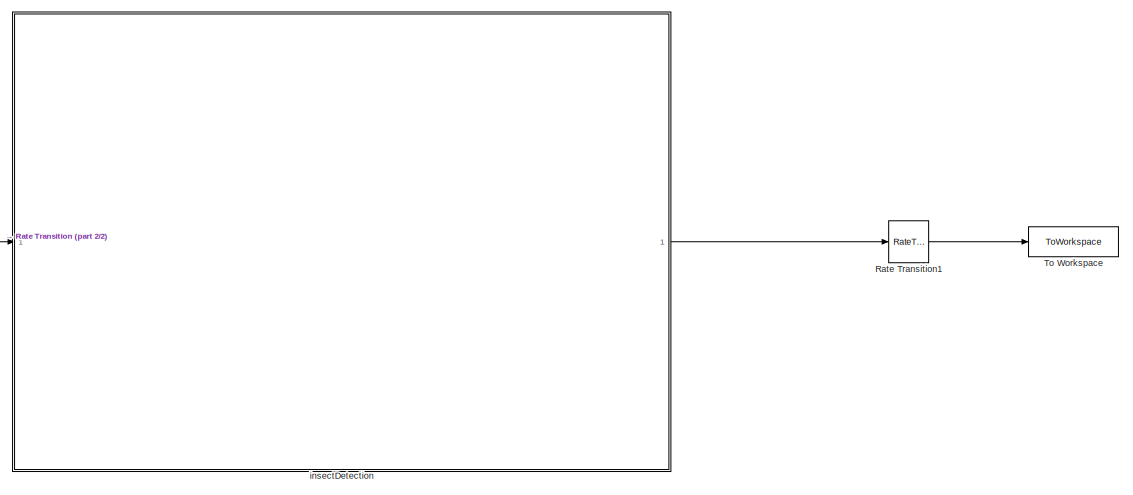
[diagram: root canvas - part 1/2, center side, full height]
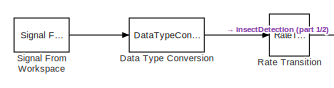
[diagram: root canvas - part 2/2, middle left region]
MODEL slx_2df6106572b7
KIND model
CONFIG AbsTol = auto
CONFIG EnableMultiTasking = off
CONFIG FixedStep = auto
CONFIG InitFcn = initSimulinkModel
CONFIG MaxStep = auto
CONFIG MinStep = auto
CONFIG PostLoadFcn = addpath('../')\nloadDataSimulinkCallback\n
CONFIG RelTol = 1e-3
CONFIG SampleTimeConstraint = Unconstrained
CONFIG SolverName = FixedStepDiscrete
CONFIG StartTime = 0.0
CONFIG StopFcn = verifySimulinkModel
CONFIG StopTime = stopTime
BLOCK [DataTypeConversion] Data Type Conversion
  OutDataTypeStr = fixdt(0,32,31)
  RndMeth = Floor
  SaturateOnIntegerOverflow = off
BLOCK [RateTransition] Rate Transition
  Deterministic = off
  OutPortSampleTime = params.systemClockPeriod
BLOCK [RateTransition] Rate Transition1
  Deterministic = off
  OutPortSampleTime = params.samplingPeriod
BLOCK [Reference] Signal From Workspace  REF=dspsrcs4/Signal From
Workspace
  Ports = [0, 1]
  SourceBlock = dspsrcs4/Signal From\nWorkspace
  SourceProductBaseCode = DS
  SourceType = Signal From Workspace
BLOCK [ToWorkspace] To Workspace
  FixptAsFi = on
  MaxDataPoints = inf
  Ports = [1]
  SampleTime = -1
  Save2DSignal = 2-D array (concatenate along first dimension)
  VariableName = predictedLabels
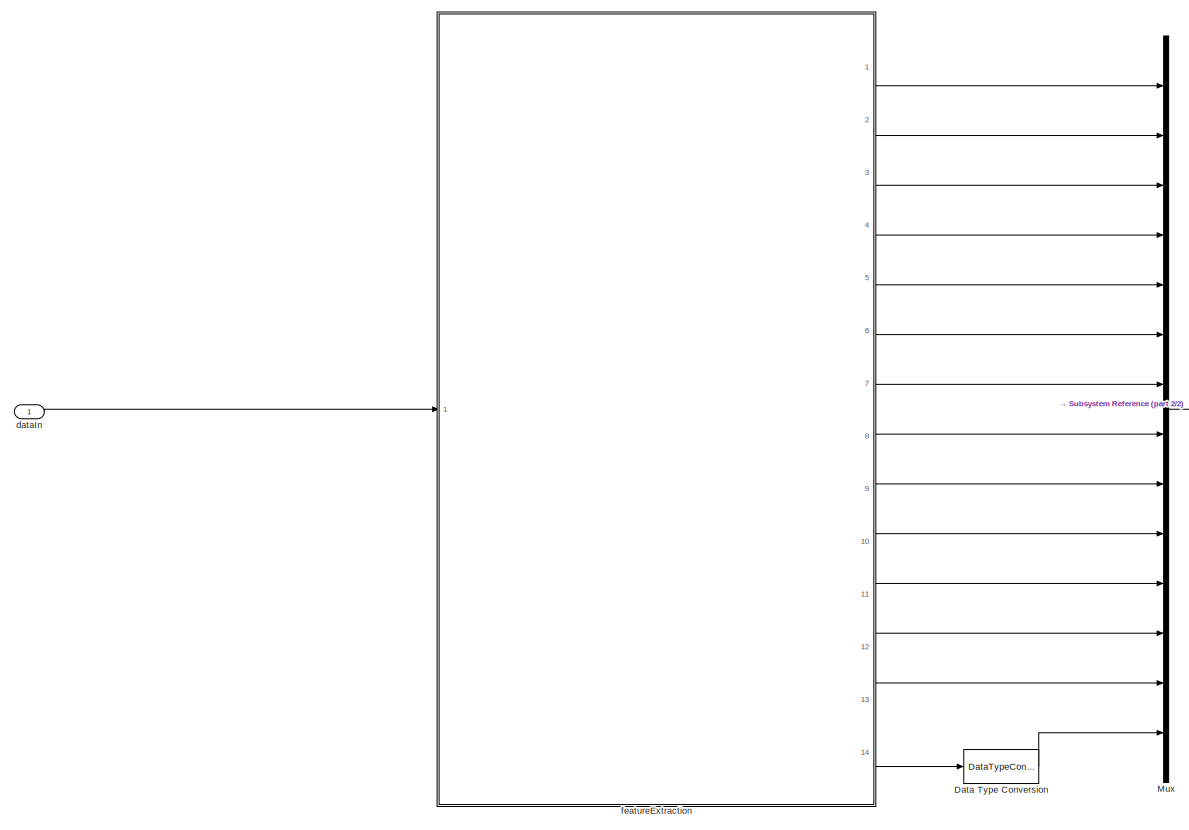
[diagram: insectDetection - part 1/2, center side, full height]
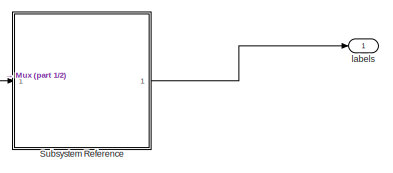
[diagram: insectDetection - part 2/2, middle right region]
BLOCK [SubSystem] insectDetection
  Ports = [1, 1]
  RequestExecContextInheritance = off
BLOCK [DataTypeConversion] insectDetection/Data Type Conversion
  OutDataTypeStr = single
  RndMeth = Nearest
  SaturateOnIntegerOverflow = off
BLOCK [Mux] insectDetection/Mux
  DisplayOption = bar
  Inputs = 14
  Ports = [14, 1]
BLOCK [SubSystem] insectDetection/Subsystem Reference
  Ports = [1, 1]
  ReferencedSubsystem = neuralNetInference
  RequestExecContextInheritance = off
BLOCK [Inport] insectDetection/dataIn
BLOCK [SubSystem] insectDetection/featureExtraction
  Ports = [1, 14]
  ReferencedSubsystem = featureExtraction
  RequestExecContextInheritance = off
BLOCK [Outport] insectDetection/labels
LINE Data Type Conversion:1 -> Rate Transition:1
LINE Rate Transition1:1 -> To Workspace:1
LINE Rate Transition:1 -> insectDetection:1
LINE Signal From Workspace:1 -> Data Type Conversion:1
LINE insectDetection/Data Type Conversion:1 -> insectDetection/Mux:14
LINE insectDetection/Mux:1 -> insectDetection/Subsystem Reference:1
LINE insectDetection/Subsystem Reference:1 -> insectDetection/labels:1
LINE insectDetection/dataIn:1 -> insectDetection/featureExtraction:1
LINE insectDetection/featureExtraction:1 -> insectDetection/Mux:1
LINE insectDetection/featureExtraction:10 -> insectDetection/Mux:10
LINE insectDetection/featureExtraction:11 -> insectDetection/Mux:11
LINE insectDetection/featureExtraction:12 -> insectDetection/Mux:12
LINE insectDetection/featureExtraction:13 -> insectDetection/Mux:13
LINE insectDetection/featureExtraction:14 -> insectDetection/Data Type Conversion:1
LINE insectDetection/featureExtraction:2 -> insectDetection/Mux:2
LINE insectDetection/featureExtraction:3 -> insectDetection/Mux:3
LINE insectDetection/featureExtraction:4 -> insectDetection/Mux:4
LINE insectDetection/featureExtraction:5 -> insectDetection/Mux:5
LINE insectDetection/featureExtraction:6 -> insectDetection/Mux:6
LINE insectDetection/featureExtraction:7 -> insectDetection/Mux:7
LINE insectDetection/featureExtraction:8 -> insectDetection/Mux:8
LINE insectDetection/featureExtraction:9 -> insectDetection/Mux:9
LINE insectDetection:1 -> Rate Transition1:1
